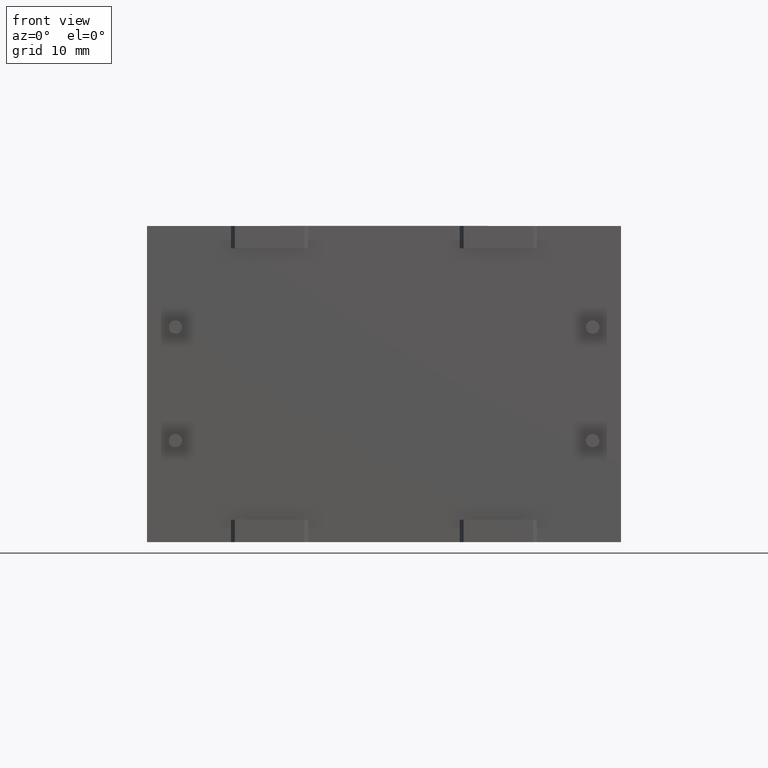
[diagram: clean part render]
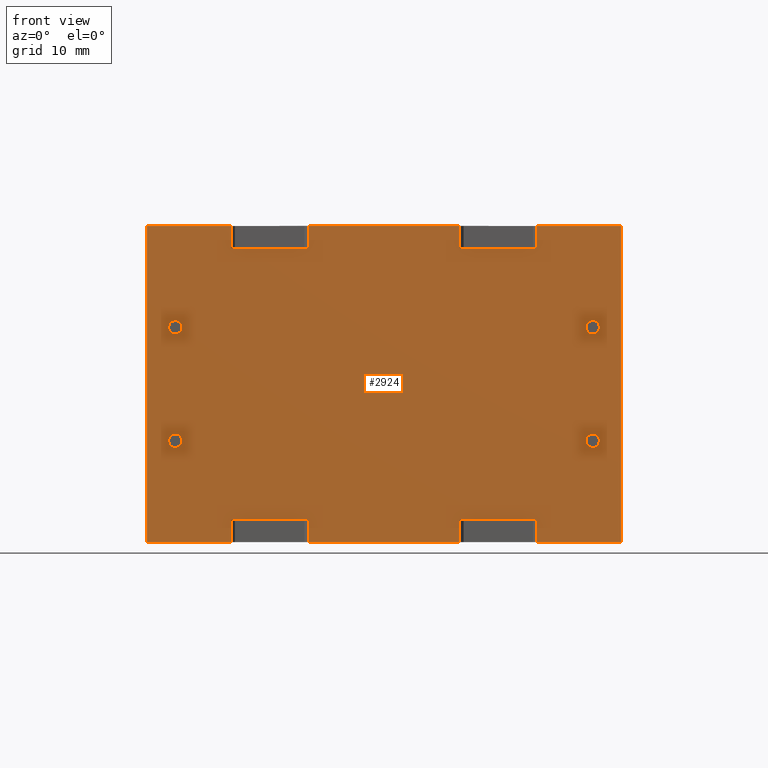
[diagram: same view with one face highlighted and labeled with its STEP entity id]
A machine part, front view. The second image highlights one B-rep face of the part: STEP entity #2924.
In plain terms, the highlighted planar face has unit normal (0, 1, 0).
Its self-contained STEP definition (entity closure, byte-faithful):
#5 = VERTEX_POINT ( 'NONE', #661 ) ;
#11 = VERTEX_POINT ( 'NONE', #3259 ) ;
#14 = VERTEX_POINT ( 'NONE', #2458 ) ;
#20 = CARTESIAN_POINT ( 'NONE',  ( 2.550000000000000300, 0.0000000000000000000, 9.099999999999999600 ) ) ;
#58 = VERTEX_POINT ( 'NONE', #2748 ) ;
#73 = CARTESIAN_POINT ( 'NONE',  ( 2.550000000000000300, 0.0000000000000000000, 9.700000000000001100 ) ) ;
#84 = CARTESIAN_POINT ( 'NONE',  ( 14.49090000000000200, 8.873117150882191100E-016, 26.39999999999999900 ) ) ;
#91 = VERTEX_POINT ( 'NONE', #3321 ) ;
#95 = DIRECTION ( 'NONE',  ( 1.000000000000000000, -6.123233995736767300E-017, 0.0000000000000000000 ) ) ;
#112 = CARTESIAN_POINT ( 'NONE',  ( 0.0000000000000000000, 0.0000000000000000000, 28.39999999999999900 ) ) ;
#123 = DIRECTION ( 'NONE',  ( 0.0000000000000000000, 0.0000000000000000000, 1.000000000000000000 ) ) ;
#138 = DIRECTION ( 'NONE',  ( 0.0000000000000000000, 0.0000000000000000000, 1.000000000000000000 ) ) ;
#139 = VECTOR ( 'NONE', #1923, 1000.000000000000000 ) ;
#141 = ORIENTED_EDGE ( 'NONE', *, *, #963, .T. ) ;
#148 = LINE ( 'NONE', #918, #2003 ) ;
#158 = VECTOR ( 'NONE', #164, 1000.000000000000000 ) ;
#164 = DIRECTION ( 'NONE',  ( 0.0000000000000000000, 0.0000000000000000000, -1.000000000000000000 ) ) ;
#171 = VECTOR ( 'NONE', #1828, 1000.000000000000000 ) ;
#180 = ORIENTED_EDGE ( 'NONE', *, *, #1458, .F. ) ;
#194 = ORIENTED_EDGE ( 'NONE', *, *, #1932, .T. ) ;
#201 = AXIS2_PLACEMENT_3D ( 'NONE', #769, #780, #2575 ) ;
#202 = CARTESIAN_POINT ( 'NONE',  ( 14.49090000000000200, 8.873117150882191100E-016, 2.000000000000000000 ) ) ;
#211 = CARTESIAN_POINT ( 'NONE',  ( 2.550000000000000300, 0.0000000000000000000, 19.29999999999999700 ) ) ;
#230 = ORIENTED_EDGE ( 'NONE', *, *, #2065, .F. ) ;
#232 = CARTESIAN_POINT ( 'NONE',  ( 2.550000000000000300, 0.0000000000000000000, 9.099999999999999600 ) ) ;
#239 = PLANE ( 'NONE',  #575 ) ;
#246 = VECTOR ( 'NONE', #138, 1000.000000000000000 ) ;
#257 = ORIENTED_EDGE ( 'NONE', *, *, #1576, .T. ) ;
#272 = AXIS2_PLACEMENT_3D ( 'NONE', #1814, #1271, #3077 ) ;
#337 = VERTEX_POINT ( 'NONE', #1807 ) ;
#374 = AXIS2_PLACEMENT_3D ( 'NONE', #678, #3253, #2224 ) ;
#404 = CARTESIAN_POINT ( 'NONE',  ( 40.05000000000000400, 0.0000000000000000000, 9.700000000000001100 ) ) ;
#414 = CARTESIAN_POINT ( 'NONE',  ( 7.550000000000000700, 0.0000000000000000000, 1.999999999999998200 ) ) ;
#428 = CARTESIAN_POINT ( 'NONE',  ( 28.10910000000000500, -8.673617379884035500E-016, 0.0000000000000000000 ) ) ;
#430 = VERTEX_POINT ( 'NONE', #2336 ) ;
#437 = CARTESIAN_POINT ( 'NONE',  ( 0.0000000000000000000, 0.0000000000000000000, 0.0000000000000000000 ) ) ;
#451 = VECTOR ( 'NONE', #1384, 1000.000000000000000 ) ;
#458 = EDGE_CURVE ( 'NONE', #1746, #2071, #1104, .T. ) ;
#469 = LINE ( 'NONE', #2423, #246 ) ;
#477 = EDGE_LOOP ( 'NONE', ( #2200, #1856 ) ) ;
#492 = CIRCLE ( 'NONE', #201, 0.5999999999999998700 ) ;
#513 = CARTESIAN_POINT ( 'NONE',  ( 42.60000000000000100, 0.0000000000000000000, 28.39999999999999900 ) ) ;
#515 = FACE_BOUND ( 'NONE', #477, .T. ) ;
#516 = ORIENTED_EDGE ( 'NONE', *, *, #738, .T. ) ;
#532 = EDGE_CURVE ( 'NONE', #2040, #1746, #3162, .T. ) ;
#542 = DIRECTION ( 'NONE',  ( -0.0000000000000000000, 1.000000000000000000, -0.0000000000000000000 ) ) ;
#550 = EDGE_CURVE ( 'NONE', #58, #2677, #1862, .T. ) ;
#559 = EDGE_LOOP ( 'NONE', ( #2526, #230 ) ) ;
#564 = ORIENTED_EDGE ( 'NONE', *, *, #1269, .F. ) ;
#569 = AXIS2_PLACEMENT_3D ( 'NONE', #2218, #1871, #1853 ) ;
#575 = AXIS2_PLACEMENT_3D ( 'NONE', #1525, #1758, #1010 ) ;
#583 = CIRCLE ( 'NONE', #272, 0.5999999999999998700 ) ;
#584 = CARTESIAN_POINT ( 'NONE',  ( 0.0000000000000000000, 0.0000000000000000000, 0.0000000000000000000 ) ) ;
#595 = EDGE_LOOP ( 'NONE', ( #2568, #564, #739, #692, #2966, #1352, #1003, #1676, #1552, #1928, #1270, #2230, #2316, #257, #1915, #194, #516, #180, #1095, #1450 ) ) ;
#621 = EDGE_CURVE ( 'NONE', #995, #2714, #2595, .T. ) ;
#653 = AXIS2_PLACEMENT_3D ( 'NONE', #20, #1794, #123 ) ;
#656 = CARTESIAN_POINT ( 'NONE',  ( 42.60000000000000100, 0.0000000000000000000, 28.39999999999999900 ) ) ;
#660 = VERTEX_POINT ( 'NONE', #1419 ) ;
#661 = CARTESIAN_POINT ( 'NONE',  ( 35.04999999999999700, 0.0000000000000000000, 1.999999999999998200 ) ) ;
#674 = EDGE_CURVE ( 'NONE', #995, #2701, #787, .T. ) ;
#678 = CARTESIAN_POINT ( 'NONE',  ( 40.05000000000000400, 0.0000000000000000000, 9.099999999999999600 ) ) ;
#692 = ORIENTED_EDGE ( 'NONE', *, *, #871, .T. ) ;
#718 = EDGE_CURVE ( 'NONE', #1214, #1478, #2471, .T. ) ;
#721 = DIRECTION ( 'NONE',  ( -0.0000000000000000000, -1.000000000000000000, -0.0000000000000000000 ) ) ;
#738 = EDGE_CURVE ( 'NONE', #11, #3172, #1976, .T. ) ;
#739 = ORIENTED_EDGE ( 'NONE', *, *, #2059, .T. ) ;
#742 = DIRECTION ( 'NONE',  ( -0.0000000000000000000, 1.000000000000000000, -0.0000000000000000000 ) ) ;
#769 = CARTESIAN_POINT ( 'NONE',  ( 40.05000000000000400, 0.0000000000000000000, 19.29999999999999700 ) ) ;
#774 = CARTESIAN_POINT ( 'NONE',  ( 40.05000000000000400, 0.0000000000000000000, 8.500000000000000000 ) ) ;
#780 = DIRECTION ( 'NONE',  ( -0.0000000000000000000, 1.000000000000000000, -0.0000000000000000000 ) ) ;
#787 = LINE ( 'NONE', #202, #158 ) ;
#801 = DIRECTION ( 'NONE',  ( -1.000000000000000000, -6.123233995736767300E-017, -0.0000000000000000000 ) ) ;
#830 = CARTESIAN_POINT ( 'NONE',  ( 7.550000000000000700, 4.623041666781258400E-016, 26.39999999999999900 ) ) ;
#844 = CARTESIAN_POINT ( 'NONE',  ( 35.04999999999999700, 4.623041666781258400E-016, 2.000000000000000000 ) ) ;
#848 = VECTOR ( 'NONE', #2934, 1000.000000000000000 ) ;
#858 = CARTESIAN_POINT ( 'NONE',  ( 0.0000000000000000000, 0.0000000000000000000, 28.39999999999999900 ) ) ;
#871 = EDGE_CURVE ( 'NONE', #5, #1673, #1012, .T. ) ;
#875 = CARTESIAN_POINT ( 'NONE',  ( 2.550000000000000300, 0.0000000000000000000, 19.89999999999999900 ) ) ;
#894 = DIRECTION ( 'NONE',  ( 1.000000000000000000, 0.0000000000000000000, 0.0000000000000000000 ) ) ;
#902 = AXIS2_PLACEMENT_3D ( 'NONE', #232, #742, #1242 ) ;
#918 = CARTESIAN_POINT ( 'NONE',  ( 0.0000000000000000000, 0.0000000000000000000, 0.0000000000000000000 ) ) ;
#948 = EDGE_CURVE ( 'NONE', #1847, #1076, #583, .T. ) ;
#963 = EDGE_CURVE ( 'NONE', #1254, #14, #3070, .T. ) ;
#993 = ORIENTED_EDGE ( 'NONE', *, *, #2280, .F. ) ;
#995 = VERTEX_POINT ( 'NONE', #2362 ) ;
#1003 = ORIENTED_EDGE ( 'NONE', *, *, #3275, .F. ) ;
#1006 = DIRECTION ( 'NONE',  ( 0.0000000000000000000, 0.0000000000000000000, -1.000000000000000000 ) ) ;
#1010 = DIRECTION ( 'NONE',  ( 0.0000000000000000000, -0.0000000000000000000, 1.000000000000000000 ) ) ;
#1012 = LINE ( 'NONE', #3045, #2996 ) ;
#1015 = CARTESIAN_POINT ( 'NONE',  ( 14.49090000000000200, 8.873117150882191100E-016, 28.39999999999999900 ) ) ;
#1076 = VERTEX_POINT ( 'NONE', #875 ) ;
#1083 = EDGE_LOOP ( 'NONE', ( #3176, #141 ) ) ;
#1095 = ORIENTED_EDGE ( 'NONE', *, *, #621, .F. ) ;
#1104 = LINE ( 'NONE', #858, #2347 ) ;
#1106 = DIRECTION ( 'NONE',  ( 1.000000000000000000, 0.0000000000000000000, 0.0000000000000000000 ) ) ;
#1151 = FACE_BOUND ( 'NONE', #559, .T. ) ;
#1214 = VERTEX_POINT ( 'NONE', #404 ) ;
#1242 = DIRECTION ( 'NONE',  ( 0.0000000000000000000, 0.0000000000000000000, 1.000000000000000000 ) ) ;
#1254 = VERTEX_POINT ( 'NONE', #2427 ) ;
#1269 = EDGE_CURVE ( 'NONE', #660, #2235, #2118, .T. ) ;
#1270 = ORIENTED_EDGE ( 'NONE', *, *, #458, .F. ) ;
#1271 = DIRECTION ( 'NONE',  ( -0.0000000000000000000, -1.000000000000000000, -0.0000000000000000000 ) ) ;
#1304 = VECTOR ( 'NONE', #1106, 1000.000000000000000 ) ;
#1348 = CARTESIAN_POINT ( 'NONE',  ( 0.0000000000000000000, 0.0000000000000000000, 28.39999999999999900 ) ) ;
#1352 = ORIENTED_EDGE ( 'NONE', *, *, #2711, .F. ) ;
#1384 = DIRECTION ( 'NONE',  ( -0.0000000000000000000, -0.0000000000000000000, -1.000000000000000000 ) ) ;
#1393 = LINE ( 'NONE', #1510, #1834 ) ;
#1419 = CARTESIAN_POINT ( 'NONE',  ( 28.10909999999999800, 0.0000000000000000000, 1.999999999999998200 ) ) ;
#1436 = ORIENTED_EDGE ( 'NONE', *, *, #948, .F. ) ;
#1446 = CIRCLE ( 'NONE', #569, 0.5999999999999998700 ) ;
#1450 = ORIENTED_EDGE ( 'NONE', *, *, #674, .T. ) ;
#1458 = EDGE_CURVE ( 'NONE', #2714, #3172, #1393, .T. ) ;
#1460 = DIRECTION ( 'NONE',  ( 1.000000000000000000, 0.0000000000000000000, 0.0000000000000000000 ) ) ;
#1478 = VERTEX_POINT ( 'NONE', #774 ) ;
#1480 = EDGE_CURVE ( 'NONE', #430, #2623, #1596, .T. ) ;
#1483 = LINE ( 'NONE', #844, #2089 ) ;
#1510 = CARTESIAN_POINT ( 'NONE',  ( 7.550000000000000700, 4.623041666781258400E-016, 2.000000000000000000 ) ) ;
#1514 = VERTEX_POINT ( 'NONE', #3104 ) ;
#1525 = CARTESIAN_POINT ( 'NONE',  ( 0.0000000000000000000, 0.0000000000000000000, 28.39999999999999900 ) ) ;
#1540 = DIRECTION ( 'NONE',  ( 0.0000000000000000000, 0.0000000000000000000, -1.000000000000000000 ) ) ;
#1552 = ORIENTED_EDGE ( 'NONE', *, *, #550, .F. ) ;
#1559 = VECTOR ( 'NONE', #3204, 1000.000000000000000 ) ;
#1576 = EDGE_CURVE ( 'NONE', #2535, #91, #1875, .T. ) ;
#1580 = CARTESIAN_POINT ( 'NONE',  ( 7.550000000000000700, 4.623041666781258400E-016, 26.39999999999999900 ) ) ;
#1596 = CIRCLE ( 'NONE', #653, 0.5999999999999998700 ) ;
#1605 = CARTESIAN_POINT ( 'NONE',  ( 7.550000000000000700, 4.623041666781258400E-016, 26.39999999999999900 ) ) ;
#1652 = CARTESIAN_POINT ( 'NONE',  ( 35.04999999999999700, 4.623041666781258400E-016, 0.0000000000000000000 ) ) ;
#1673 = VERTEX_POINT ( 'NONE', #1652 ) ;
#1676 = ORIENTED_EDGE ( 'NONE', *, *, #3178, .F. ) ;
#1680 = VECTOR ( 'NONE', #801, 1000.000000000000000 ) ;
#1728 = EDGE_CURVE ( 'NONE', #2623, #430, #3103, .T. ) ;
#1746 = VERTEX_POINT ( 'NONE', #1015 ) ;
#1753 = LINE ( 'NONE', #1580, #1680 ) ;
#1758 = DIRECTION ( 'NONE',  ( 0.0000000000000000000, 1.000000000000000000, 0.0000000000000000000 ) ) ;
#1794 = DIRECTION ( 'NONE',  ( -0.0000000000000000000, 1.000000000000000000, -0.0000000000000000000 ) ) ;
#1807 = CARTESIAN_POINT ( 'NONE',  ( 0.0000000000000000000, 0.0000000000000000000, 28.39999999999999900 ) ) ;
#1808 = AXIS2_PLACEMENT_3D ( 'NONE', #211, #721, #2824 ) ;
#1814 = CARTESIAN_POINT ( 'NONE',  ( 2.550000000000000300, 0.0000000000000000000, 19.29999999999999700 ) ) ;
#1822 = DIRECTION ( 'NONE',  ( 0.0000000000000000000, 0.0000000000000000000, -1.000000000000000000 ) ) ;
#1824 = CARTESIAN_POINT ( 'NONE',  ( 35.04999999999998300, 0.0000000000000000000, 28.39999999999999900 ) ) ;
#1828 = DIRECTION ( 'NONE',  ( 0.0000000000000000000, 0.0000000000000000000, 1.000000000000000000 ) ) ;
#1834 = VECTOR ( 'NONE', #1006, 1000.000000000000000 ) ;
#1847 = VERTEX_POINT ( 'NONE', #2314 ) ;
#1853 = DIRECTION ( 'NONE',  ( 0.0000000000000000000, 0.0000000000000000000, 1.000000000000000000 ) ) ;
#1856 = ORIENTED_EDGE ( 'NONE', *, *, #1480, .T. ) ;
#1862 = LINE ( 'NONE', #3222, #2798 ) ;
#1871 = DIRECTION ( 'NONE',  ( -0.0000000000000000000, -1.000000000000000000, -0.0000000000000000000 ) ) ;
#1875 = LINE ( 'NONE', #830, #171 ) ;
#1898 = CARTESIAN_POINT ( 'NONE',  ( 7.550000000000000700, 0.0000000000000000000, 0.0000000000000000000 ) ) ;
#1909 = FACE_BOUND ( 'NONE', #1083, .T. ) ;
#1915 = ORIENTED_EDGE ( 'NONE', *, *, #2565, .F. ) ;
#1923 = DIRECTION ( 'NONE',  ( 0.0000000000000000000, 0.0000000000000000000, 1.000000000000000000 ) ) ;
#1928 = ORIENTED_EDGE ( 'NONE', *, *, #2667, .T. ) ;
#1932 = EDGE_CURVE ( 'NONE', #337, #11, #2709, .T. ) ;
#1976 = LINE ( 'NONE', #437, #2795 ) ;
#2003 = VECTOR ( 'NONE', #3012, 1000.000000000000000 ) ;
#2040 = VERTEX_POINT ( 'NONE', #84 ) ;
#2059 = EDGE_CURVE ( 'NONE', #660, #5, #1483, .T. ) ;
#2065 = EDGE_CURVE ( 'NONE', #1478, #1214, #1446, .T. ) ;
#2071 = VERTEX_POINT ( 'NONE', #2921 ) ;
#2089 = VECTOR ( 'NONE', #95, 1000.000000000000000 ) ;
#2118 = LINE ( 'NONE', #3248, #2450 ) ;
#2173 = CARTESIAN_POINT ( 'NONE',  ( 28.10909999999999800, 8.873117150882191100E-016, 26.39999999999999900 ) ) ;
#2189 = CARTESIAN_POINT ( 'NONE',  ( 35.04999999999999700, 4.623041666781258400E-016, 26.39999999999999900 ) ) ;
#2194 = EDGE_CURVE ( 'NONE', #2701, #2235, #148, .T. ) ;
#2200 = ORIENTED_EDGE ( 'NONE', *, *, #1728, .T. ) ;
#2218 = CARTESIAN_POINT ( 'NONE',  ( 40.05000000000000400, 0.0000000000000000000, 9.099999999999999600 ) ) ;
#2224 = DIRECTION ( 'NONE',  ( 0.0000000000000000000, 0.0000000000000000000, 1.000000000000000000 ) ) ;
#2230 = ORIENTED_EDGE ( 'NONE', *, *, #532, .F. ) ;
#2235 = VERTEX_POINT ( 'NONE', #428 ) ;
#2280 = EDGE_CURVE ( 'NONE', #1076, #1847, #2499, .T. ) ;
#2314 = CARTESIAN_POINT ( 'NONE',  ( 2.550000000000000300, 0.0000000000000000000, 18.69999999999999900 ) ) ;
#2316 = ORIENTED_EDGE ( 'NONE', *, *, #2422, .T. ) ;
#2336 = CARTESIAN_POINT ( 'NONE',  ( 2.550000000000000300, 0.0000000000000000000, 8.500000000000000000 ) ) ;
#2347 = VECTOR ( 'NONE', #2390, 1000.000000000000000 ) ;
#2355 = CARTESIAN_POINT ( 'NONE',  ( 14.49090000000000200, 8.873117150882191100E-016, 26.39999999999999900 ) ) ;
#2362 = CARTESIAN_POINT ( 'NONE',  ( 14.49090000000000200, 0.0000000000000000000, 1.999999999999998200 ) ) ;
#2365 = CARTESIAN_POINT ( 'NONE',  ( 0.0000000000000000000, 0.0000000000000000000, 28.39999999999999900 ) ) ;
#2373 = EDGE_CURVE ( 'NONE', #14, #1254, #492, .T. ) ;
#2390 = DIRECTION ( 'NONE',  ( 1.000000000000000000, 0.0000000000000000000, 0.0000000000000000000 ) ) ;
#2402 = FACE_OUTER_BOUND ( 'NONE', #595, .T. ) ;
#2422 = EDGE_CURVE ( 'NONE', #2040, #2535, #1753, .T. ) ;
#2423 = CARTESIAN_POINT ( 'NONE',  ( 35.04999999999999700, 4.623041666781258400E-016, 26.39999999999999900 ) ) ;
#2427 = CARTESIAN_POINT ( 'NONE',  ( 40.05000000000000400, 0.0000000000000000000, 18.69999999999999900 ) ) ;
#2439 = CARTESIAN_POINT ( 'NONE',  ( 7.550000000000000700, 4.623041666781258400E-016, 2.000000000000000000 ) ) ;
#2450 = VECTOR ( 'NONE', #3265, 1000.000000000000000 ) ;
#2458 = CARTESIAN_POINT ( 'NONE',  ( 40.05000000000000400, 0.0000000000000000000, 19.89999999999999900 ) ) ;
#2464 = VERTEX_POINT ( 'NONE', #1824 ) ;
#2471 = CIRCLE ( 'NONE', #374, 0.5999999999999998700 ) ;
#2499 = CIRCLE ( 'NONE', #1808, 0.5999999999999998700 ) ;
#2526 = ORIENTED_EDGE ( 'NONE', *, *, #718, .F. ) ;
#2535 = VERTEX_POINT ( 'NONE', #1605 ) ;
#2565 = EDGE_CURVE ( 'NONE', #337, #91, #2898, .T. ) ;
#2568 = ORIENTED_EDGE ( 'NONE', *, *, #2194, .T. ) ;
#2575 = DIRECTION ( 'NONE',  ( 0.0000000000000000000, 0.0000000000000000000, -1.000000000000000000 ) ) ;
#2595 = LINE ( 'NONE', #2439, #2874 ) ;
#2623 = VERTEX_POINT ( 'NONE', #73 ) ;
#2667 = EDGE_CURVE ( 'NONE', #58, #2071, #2938, .T. ) ;
#2675 = DIRECTION ( 'NONE',  ( 1.000000000000000000, -6.123233995736767300E-017, -0.0000000000000000000 ) ) ;
#2677 = VERTEX_POINT ( 'NONE', #2189 ) ;
#2678 = AXIS2_PLACEMENT_3D ( 'NONE', #3129, #542, #1822 ) ;
#2701 = VERTEX_POINT ( 'NONE', #2990 ) ;
#2708 = DIRECTION ( 'NONE',  ( -1.000000000000000000, -6.123233995736767300E-017, 0.0000000000000000000 ) ) ;
#2709 = LINE ( 'NONE', #2365, #451 ) ;
#2711 = EDGE_CURVE ( 'NONE', #2971, #1514, #3014, .T. ) ;
#2714 = VERTEX_POINT ( 'NONE', #414 ) ;
#2726 = VECTOR ( 'NONE', #894, 1000.000000000000000 ) ;
#2748 = CARTESIAN_POINT ( 'NONE',  ( 28.10909999999999800, 8.873117150882191100E-016, 26.39999999999999900 ) ) ;
#2795 = VECTOR ( 'NONE', #1460, 1000.000000000000000 ) ;
#2798 = VECTOR ( 'NONE', #2675, 1000.000000000000000 ) ;
#2824 = DIRECTION ( 'NONE',  ( 0.0000000000000000000, 0.0000000000000000000, 1.000000000000000000 ) ) ;
#2874 = VECTOR ( 'NONE', #2708, 1000.000000000000000 ) ;
#2898 = LINE ( 'NONE', #1348, #848 ) ;
#2921 = CARTESIAN_POINT ( 'NONE',  ( 28.10909999999999800, 8.873117150882191100E-016, 28.39999999999999900 ) ) ;
#2924 = ADVANCED_FACE ( 'NONE', ( #3087, #2402, #1909, #515, #1151 ), #239, .F. ) ;
#2932 = EDGE_LOOP ( 'NONE', ( #993, #1436 ) ) ;
#2934 = DIRECTION ( 'NONE',  ( 1.000000000000000000, 0.0000000000000000000, 0.0000000000000000000 ) ) ;
#2938 = LINE ( 'NONE', #2173, #139 ) ;
#2961 = VECTOR ( 'NONE', #3146, 1000.000000000000000 ) ;
#2966 = ORIENTED_EDGE ( 'NONE', *, *, #3155, .T. ) ;
#2971 = VERTEX_POINT ( 'NONE', #513 ) ;
#2990 = CARTESIAN_POINT ( 'NONE',  ( 14.49090000000000200, 8.873117150882191100E-016, 0.0000000000000000000 ) ) ;
#2996 = VECTOR ( 'NONE', #1540, 1000.000000000000000 ) ;
#3012 = DIRECTION ( 'NONE',  ( 1.000000000000000000, 0.0000000000000000000, 0.0000000000000000000 ) ) ;
#3014 = LINE ( 'NONE', #656, #1559 ) ;
#3045 = CARTESIAN_POINT ( 'NONE',  ( 35.04999999999999700, 4.623041666781258400E-016, 2.000000000000000000 ) ) ;
#3070 = CIRCLE ( 'NONE', #2678, 0.5999999999999998700 ) ;
#3077 = DIRECTION ( 'NONE',  ( 0.0000000000000000000, 0.0000000000000000000, 1.000000000000000000 ) ) ;
#3087 = FACE_BOUND ( 'NONE', #2932, .T. ) ;
#3103 = CIRCLE ( 'NONE', #902, 0.5999999999999998700 ) ;
#3104 = CARTESIAN_POINT ( 'NONE',  ( 42.60000000000000100, 0.0000000000000000000, 0.0000000000000000000 ) ) ;
#3129 = CARTESIAN_POINT ( 'NONE',  ( 40.05000000000000400, 0.0000000000000000000, 19.29999999999999700 ) ) ;
#3146 = DIRECTION ( 'NONE',  ( 0.0000000000000000000, 0.0000000000000000000, 1.000000000000000000 ) ) ;
#3155 = EDGE_CURVE ( 'NONE', #1673, #1514, #3166, .T. ) ;
#3162 = LINE ( 'NONE', #2355, #2961 ) ;
#3166 = LINE ( 'NONE', #584, #1304 ) ;
#3172 = VERTEX_POINT ( 'NONE', #1898 ) ;
#3176 = ORIENTED_EDGE ( 'NONE', *, *, #2373, .T. ) ;
#3178 = EDGE_CURVE ( 'NONE', #2677, #2464, #469, .T. ) ;
#3204 = DIRECTION ( 'NONE',  ( -0.0000000000000000000, -0.0000000000000000000, -1.000000000000000000 ) ) ;
#3222 = CARTESIAN_POINT ( 'NONE',  ( 35.04999999999999700, 4.623041666781258400E-016, 26.39999999999999900 ) ) ;
#3248 = CARTESIAN_POINT ( 'NONE',  ( 28.10909999999999800, 8.873117150882191100E-016, 2.000000000000000000 ) ) ;
#3253 = DIRECTION ( 'NONE',  ( -0.0000000000000000000, -1.000000000000000000, -0.0000000000000000000 ) ) ;
#3259 = CARTESIAN_POINT ( 'NONE',  ( 0.0000000000000000000, 0.0000000000000000000, 0.0000000000000000000 ) ) ;
#3265 = DIRECTION ( 'NONE',  ( 0.0000000000000000000, 0.0000000000000000000, -1.000000000000000000 ) ) ;
#3275 = EDGE_CURVE ( 'NONE', #2464, #2971, #3336, .T. ) ;
#3321 = CARTESIAN_POINT ( 'NONE',  ( 7.550000000000000700, 0.0000000000000000000, 28.39999999999999900 ) ) ;
#3336 = LINE ( 'NONE', #112, #2726 ) ;